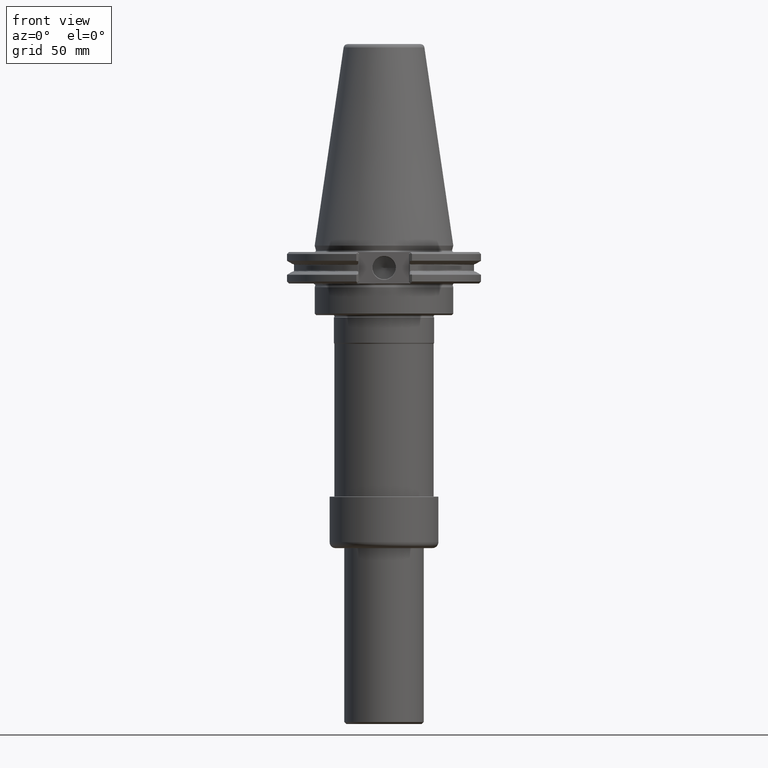
[diagram: clean part render]
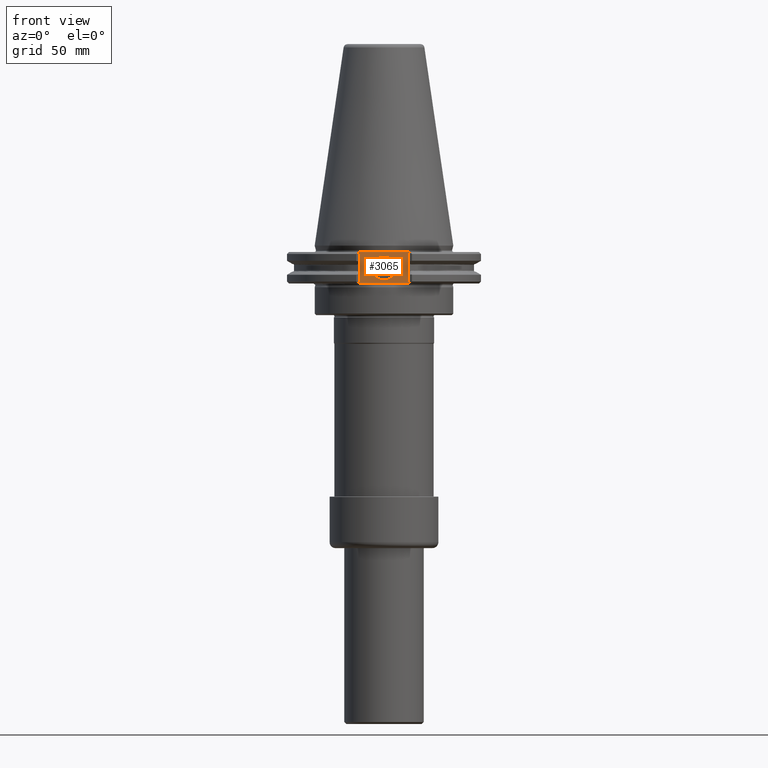
[diagram: same view with one face highlighted and labeled with its STEP entity id]
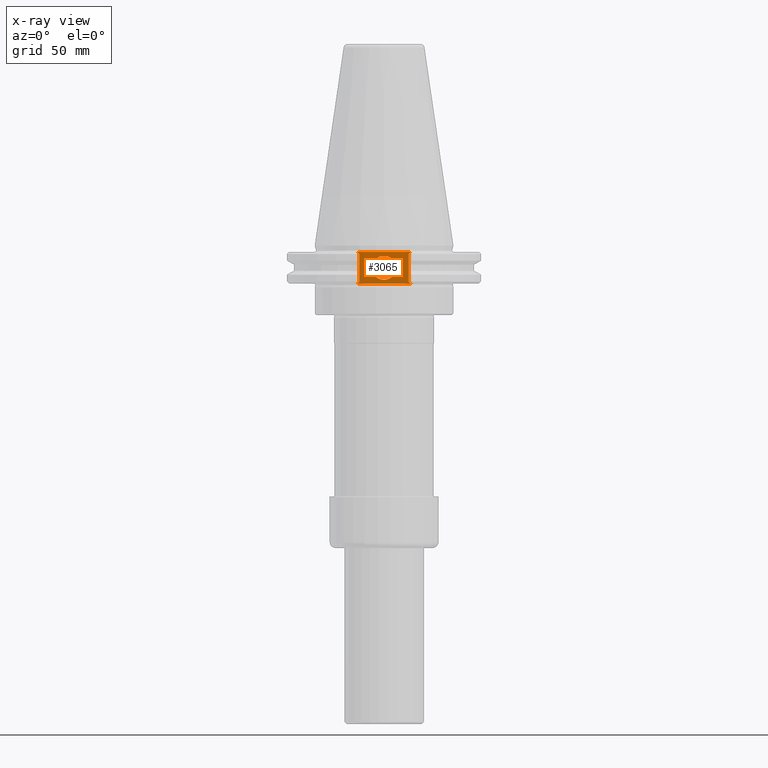
[diagram: x-ray of the same camera — body ghosted, the highlighted face saturated]
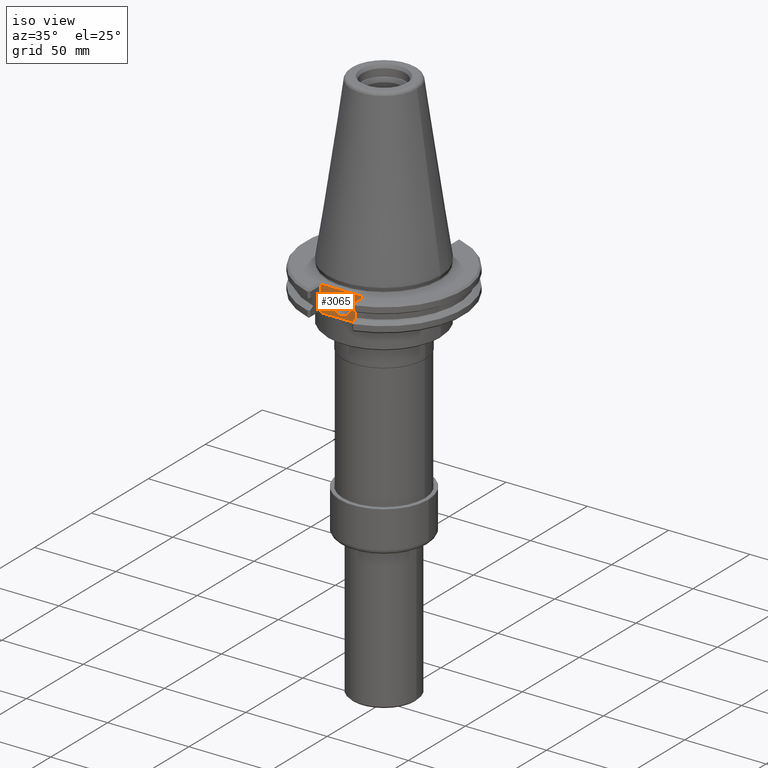
[diagram: same view with one face highlighted and labeled with its STEP entity id]
A machine part, front view. The second image highlights one B-rep face of the part: STEP entity #3065.
The next image is the same camera in x-ray: the body ghosted, the highlighted face saturated — about 0% of this face is hidden behind the body in this view.
A second angle (iso view) of the same face is appended — the face is thin or edge-on in the first view.
In plain terms, the highlighted planar face has unit normal (0, 1, 0).
Its self-contained STEP definition (entity closure, byte-faithful):
#58=LINE('',#4201,#131);
#64=LINE('',#4233,#137);
#77=LINE('',#4280,#150);
#78=LINE('',#4282,#151);
#79=LINE('',#4284,#152);
#80=LINE('',#4286,#153);
#81=LINE('',#4287,#154);
#82=LINE('',#4289,#155);
#131=VECTOR('',#3540,1000.);
#137=VECTOR('',#3572,1000.);
#150=VECTOR('',#3623,1000.);
#151=VECTOR('',#3626,1000.);
#152=VECTOR('',#3627,1000.);
#153=VECTOR('',#3628,1000.);
#154=VECTOR('',#3629,1000.);
#155=VECTOR('',#3630,1000.);
#436=ORIENTED_EDGE('',*,*,#920,.T.);
#437=ORIENTED_EDGE('',*,*,#945,.T.);
#438=ORIENTED_EDGE('',*,*,#946,.F.);
#439=ORIENTED_EDGE('',*,*,#947,.T.);
#440=ORIENTED_EDGE('',*,*,#904,.T.);
#441=ORIENTED_EDGE('',*,*,#944,.T.);
#442=ORIENTED_EDGE('',*,*,#948,.T.);
#443=ORIENTED_EDGE('',*,*,#949,.T.);
#444=ORIENTED_EDGE('',*,*,#950,.T.);
#904=EDGE_CURVE('',#1174,#1173,#58,.T.);
#920=EDGE_CURVE('',#1187,#1186,#64,.T.);
#944=EDGE_CURVE('',#1173,#1201,#77,.T.);
#945=EDGE_CURVE('',#1186,#1202,#78,.T.);
#946=EDGE_CURVE('',#1203,#1202,#79,.T.);
#947=EDGE_CURVE('',#1203,#1174,#80,.T.);
#948=EDGE_CURVE('',#1201,#1204,#81,.T.);
#949=EDGE_CURVE('',#1204,#1187,#82,.T.);
#950=EDGE_CURVE('',#1205,#1205,#1376,.T.);
#1173=VERTEX_POINT('',#4200);
#1174=VERTEX_POINT('',#4202);
#1186=VERTEX_POINT('',#4232);
#1187=VERTEX_POINT('',#4234);
#1201=VERTEX_POINT('',#4279);
#1202=VERTEX_POINT('',#4283);
#1203=VERTEX_POINT('',#4285);
#1204=VERTEX_POINT('',#4288);
#1205=VERTEX_POINT('',#4291);
#1376=CIRCLE('',#3253,6.05);
#1516=EDGE_LOOP('',(#436,#437,#438,#439,#440,#441,#442,#443));
#1517=EDGE_LOOP('',(#444));
#1749=FACE_BOUND('',#1516,.T.);
#1750=FACE_BOUND('',#1517,.T.);
#1964=PLANE('',#3252);
#3065=ADVANCED_FACE('',(#1749,#1750),#1964,.F.);
#3252=AXIS2_PLACEMENT_3D('',#4281,#3624,#3625);
#3253=AXIS2_PLACEMENT_3D('',#4290,#3631,#3632);
#3540=DIRECTION('',(1.,0.,0.));
#3572=DIRECTION('',(-1.,0.,0.));
#3623=DIRECTION('',(-0.707106781186547,0.,0.707106781186548));
#3624=DIRECTION('',(0.,1.,0.));
#3625=DIRECTION('',(1.,0.,0.));
#3626=DIRECTION('',(0.707106781186545,0.,-0.70710678118655));
#3627=DIRECTION('',(0.,0.,1.));
#3628=DIRECTION('',(-0.707106781186547,0.,-0.707106781186548));
#3629=DIRECTION('',(0.,0.,1.));
#3630=DIRECTION('',(0.707106781186545,0.,0.70710678118655));
#3631=DIRECTION('',(0.,1.,0.));
#3632=DIRECTION('',(1.,0.,0.));
#4200=CARTESIAN_POINT('',(13.2478932188135,-37.57,-19.04));
#4201=CARTESIAN_POINT('',(49.35,-37.57,-19.04));
#4202=CARTESIAN_POINT('',(-13.2478932188135,-37.57,-19.04));
#4232=CARTESIAN_POINT('',(-13.2478932188135,-37.57,-3.17));
#4233=CARTESIAN_POINT('',(12.955,-37.57,-3.17));
#4234=CARTESIAN_POINT('',(13.2478932188135,-37.57,-3.17));
#4279=CARTESIAN_POINT('',(12.455,-37.57,-18.2471067811865));
#4280=CARTESIAN_POINT('',(102.905004123829,-37.57,-108.697110905015));
#4281=CARTESIAN_POINT('',(12.955,-37.57,-198.647115028844));
#4282=CARTESIAN_POINT('',(97.5921109050153,-37.57,-114.01000412383));
#4283=CARTESIAN_POINT('',(-12.455,-37.57,-3.96289321881346));
#4284=CARTESIAN_POINT('',(-12.455,-37.57,-18.04));
#4285=CARTESIAN_POINT('',(-12.455,-37.57,-18.2471067811865));
#4286=CARTESIAN_POINT('',(-89.9500041238289,-37.57,-95.7421109050155));
#4287=CARTESIAN_POINT('',(12.455,-37.57,-4.17000000000001));
#4288=CARTESIAN_POINT('',(12.455,-37.57,-3.96289321881346));
#4289=CARTESIAN_POINT('',(-84.6371109050154,-37.57,-101.05500412383));
#4290=CARTESIAN_POINT('',(0.,-37.57,-11.18));
#4291=CARTESIAN_POINT('',(6.05,-37.57,-11.18));